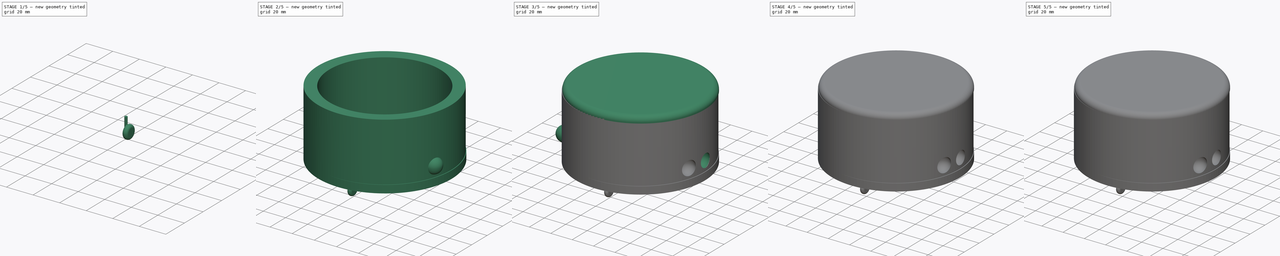
[diagram: build sequence overview — one tinted view per stage of 5, left to right]
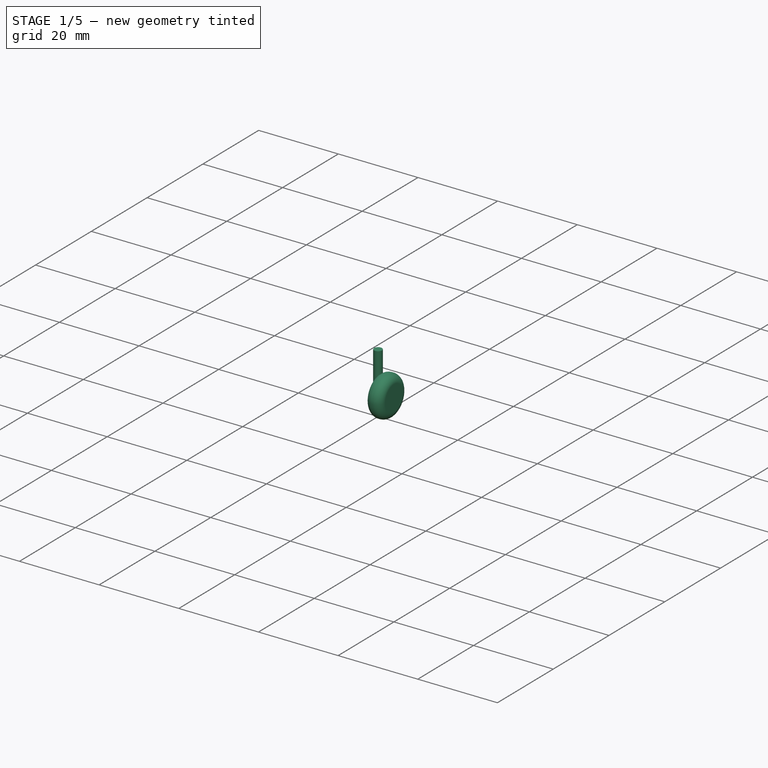
[diagram: stage 1 of 5 — iso view after this stage's code; geometry added in this stage tinted green]
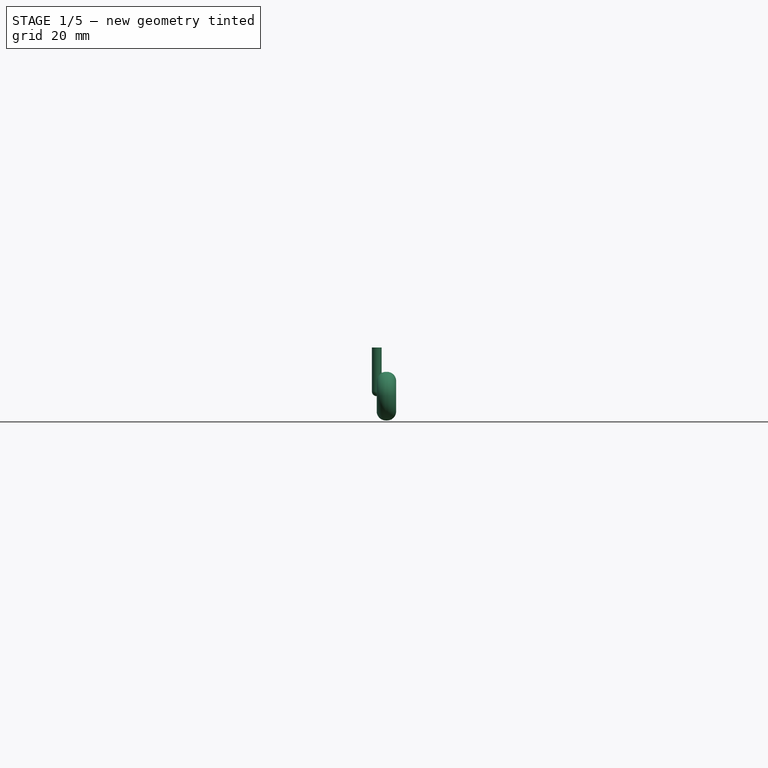
[diagram: stage 1 of 5 — front view after this stage's code; geometry added in this stage tinted green]
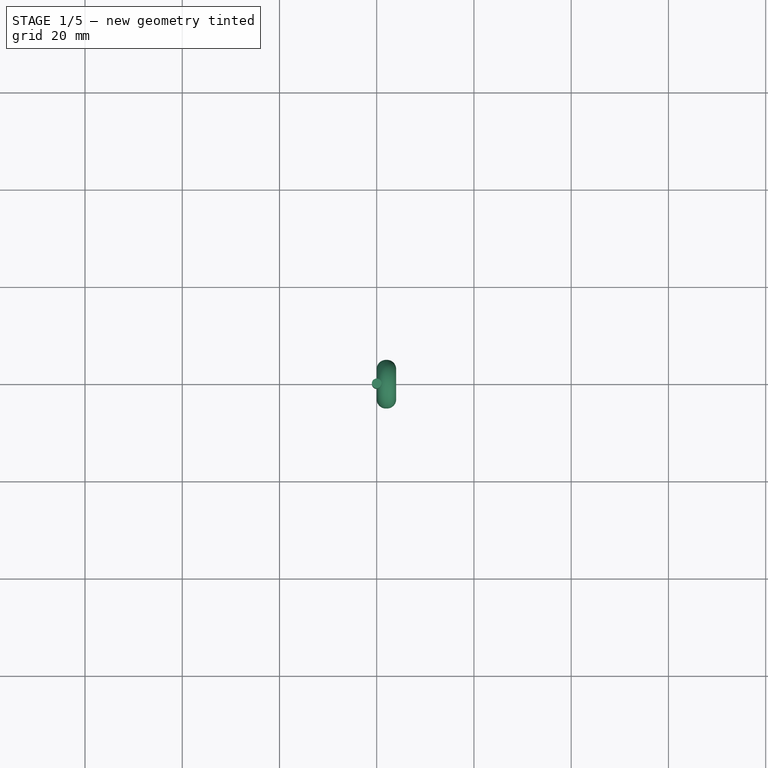
[diagram: stage 1 of 5 — top view after this stage's code; geometry added in this stage tinted green]
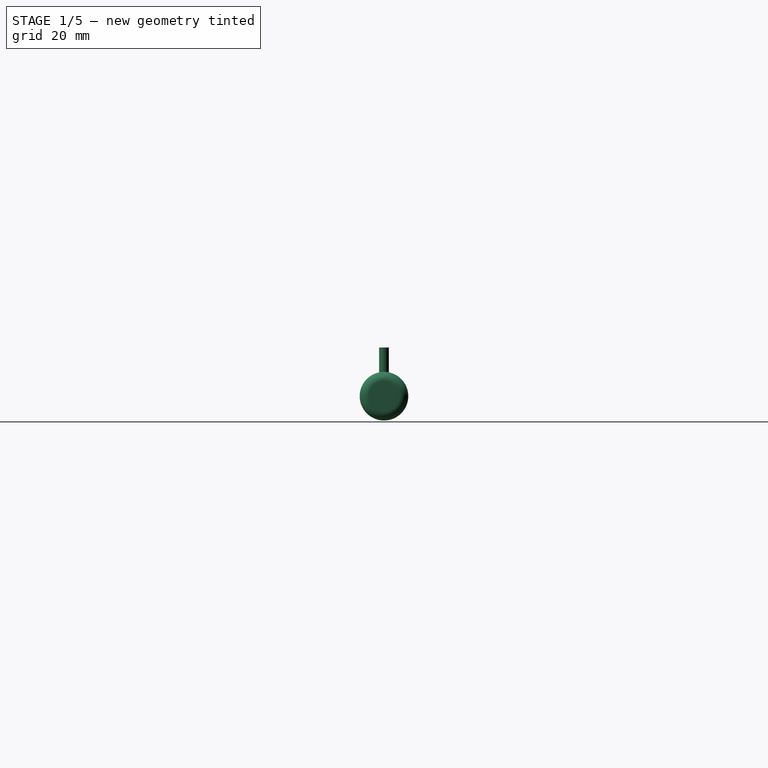
[diagram: stage 1 of 5 — right view after this stage's code; geometry added in this stage tinted green]
FCSTD DOCUMENT  (FreeCAD 0.18R4 (GitTag))
Label: diy lab work_Denny (2)
License: All rights reserved
LicenseURL: http://en.wikipedia.org/wiki/All_rights_reserved
objects: PartDesign::Fillet×12, Sketcher::SketchObject×10, PartDesign::Body×8, PartDesign::Pad×6, Part::Sphere×6, Part::Cut×6, PartDesign::Revolution×3, Part::FeaturePython×2, PartDesign::Pocket×1, Part::Box×1
note: 65 computed .brp shape members not serialized (recipe doc carries the construction recipe); baked Part::Feature solids carry a one-line shape summary decoded from their .brp

FEATURE [Sketcher::SketchObject] Sketch007
  MapMode = 5
  Placement = pos=(0,0,0) rot=(0.57735,0.57735,0.57735;2.0944rad)
  Support = -> [YZ_Plane005]
  sketch-geometry (1):
    g0: Circle CenterX=0 CenterY=0 CenterZ=0 NormalX=0 NormalY=0 NormalZ=1 AngleXU=0 Radius=5
  constraints (2):
    c: Coincident(g0,g-1)
    c: Radius(g0) = 5
FEATURE [PartDesign::Pad] Pad003
  Length = 4
  Length2 = 100
  Placement = pos=(0,0,0) rot=(0.57735,0.57735,0.57735;2.0944rad)
  Profile = -> Sketch007
  Type = 0
FEATURE [PartDesign::Fillet] Fillet007
  Base = -> Pad003 [Edge3]
  BaseFeature = -> Pad003
  Placement = pos=(0,0,0) rot=(0.57735,0.57735,0.57735;2.0944rad)
  Radius = 1.88
FEATURE [PartDesign::Fillet] Fillet009
  Base = -> Fillet007 [Edge3]
  BaseFeature = -> Fillet007
  Placement = pos=(0,0,0) rot=(0.57735,0.57735,0.57735;2.0944rad)
  Radius = 1.88
FEATURE [PartDesign::Body] Body005
  Group = -> [Sketch007,Pad003,Fillet007,Fillet008,Fillet009]
  Origin = -> Origin005
  Placement = pos=(0,-45,-7) rot=(0,0,1;0rad)
  Tip = -> Fillet009
FEATURE [Sketcher::SketchObject] Sketch008
  MapMode = 5
  Support = -> [XY_Plane006]
  sketch-geometry (1):
    g0: Circle CenterX=0 CenterY=0 CenterZ=0 NormalX=0 NormalY=0 NormalZ=1 AngleXU=0 Radius=1
  constraints (2):
    c: Radius(g0) = 1
    c: Coincident(g0,g-1)
FEATURE [PartDesign::Pad] Pad004
  Length = 10
  Length2 = 100
  Profile = -> Sketch008
  Type = 0
FEATURE [PartDesign::Fillet] Fillet010
  Base = -> Pad004 [Edge2]
  BaseFeature = -> Pad004
  Radius = 1
FEATURE [PartDesign::Body] Body006
  Group = -> [Sketch008,Pad004,Fillet010]
  Origin = -> Origin006
  Placement = pos=(0,-45,-7) rot=(0,0,1;0rad)
  Tip = -> Fillet010
FEATURE [Sketcher::SketchObject] Sketch009
  MapMode = 5
  Support = -> [XY_Plane007]
  sketch-geometry (1):
    g0: Circle CenterX=0 CenterY=0 CenterZ=0 NormalX=0 NormalY=0 NormalZ=1 AngleXU=0 Radius=1
  constraints (2):
    c: Radius(g0) = 1
    c: Coincident(g0,g-1)
FEATURE [PartDesign::Pad] Pad005
  Length = 10
  Length2 = 100
  Profile = -> Sketch009
  Type = 0
FEATURE [PartDesign::Fillet] Fillet011
  Base = -> Pad005 [Edge2]
  BaseFeature = -> Pad005
  Radius = 1
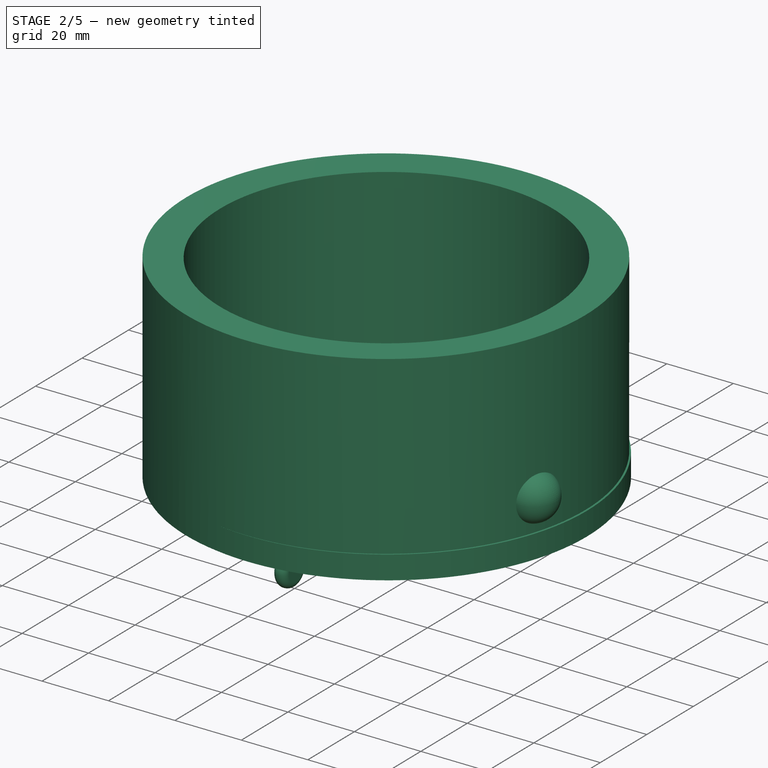
[diagram: stage 2 of 5 — iso view after this stage's code; geometry added in this stage tinted green]
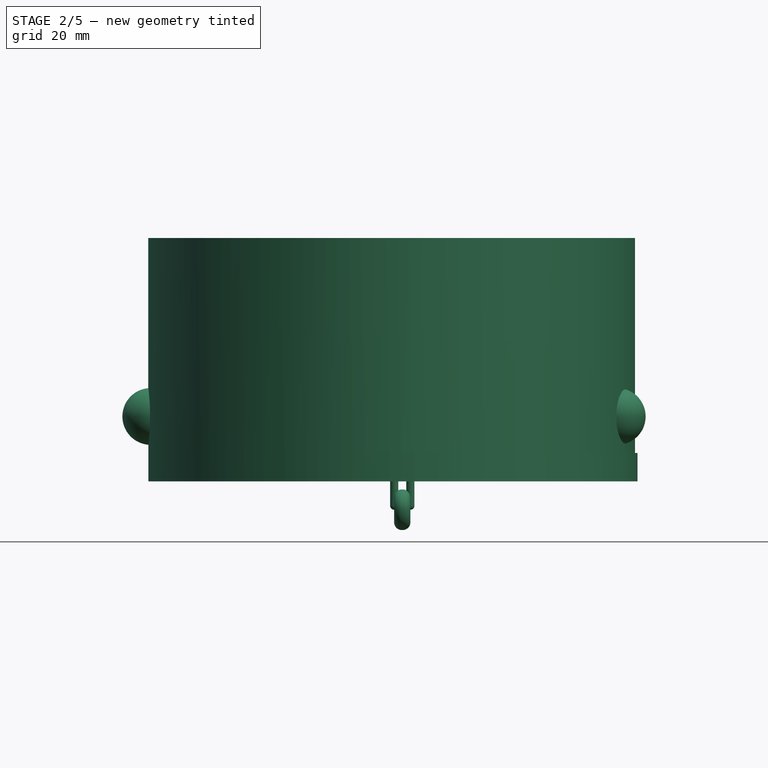
[diagram: stage 2 of 5 — front view after this stage's code; geometry added in this stage tinted green]
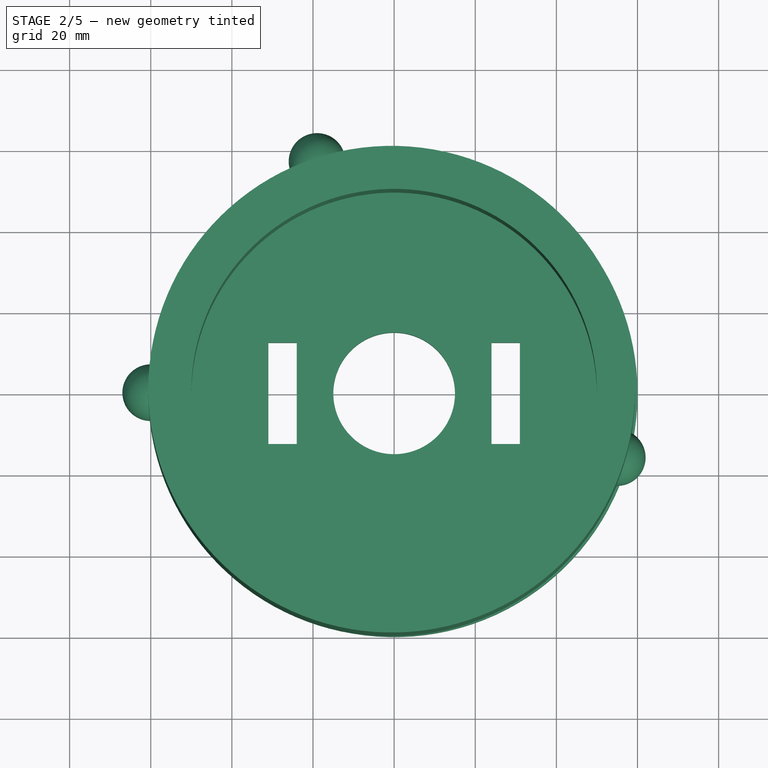
[diagram: stage 2 of 5 — top view after this stage's code; geometry added in this stage tinted green]
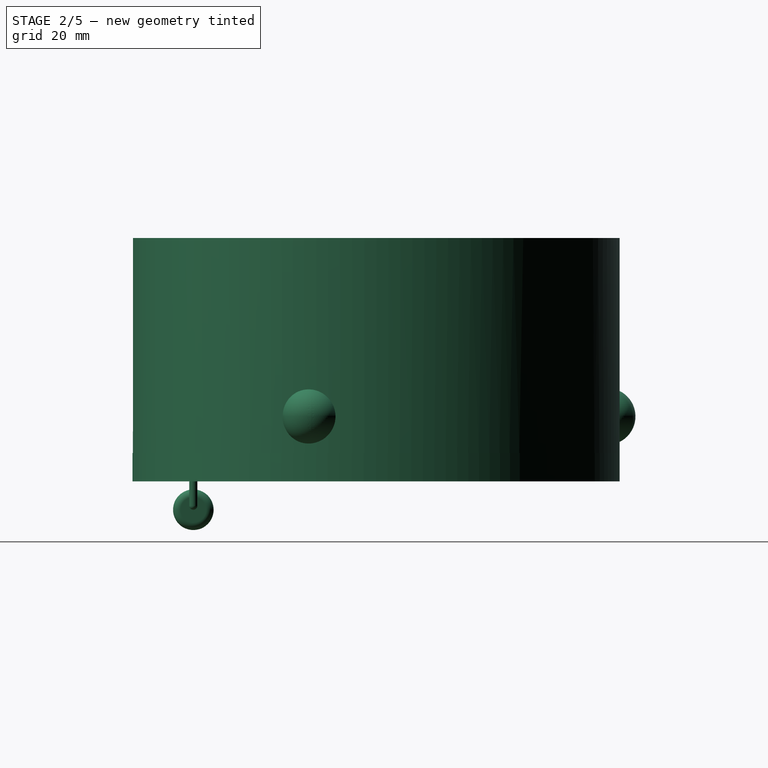
[diagram: stage 2 of 5 — right view after this stage's code; geometry added in this stage tinted green]
FEATURE [Sketcher::SketchObject] Sketch
  MapMode = 5
  Support = -> [XY_Plane]
  sketch-geometry (1):
    g0: Circle CenterX=0 CenterY=0 CenterZ=0 NormalX=0 NormalY=0 NormalZ=1 AngleXU=0 Radius=60
  constraints (1):
    c: Radius(g0) = 60
FEATURE [PartDesign::Pad] Pad
  Length = 7
  Length2 = 100
  Profile = -> Sketch
  Type = 0
FEATURE [Sketcher::SketchObject] Sketch001
  MapMode = 45
  Placement = pos=(25.9253,-0.791921,32.0728) rot=(-0.020041,-0.065853,0.997628;0.837348rad)
  sketch-geometry (2):
    g0: Circle CenterX=-0.611188 CenterY=0.101861 CenterZ=0 NormalX=0 NormalY=0 NormalZ=1 AngleXU=0 Radius=60
    g1: Circle CenterX=0 CenterY=-0.509323 CenterZ=0 NormalX=0 NormalY=0 NormalZ=1 AngleXU=0 Radius=50
  constraints (2):
    c: Radius(g0) = 60
    c: Radius(g1) = 50
FEATURE [PartDesign::Pad] Pad001
  BaseFeature = -> Pad
  Length = 60
  Length2 = 100
  Profile = -> Sketch001
  Type = 0
FEATURE [Sketcher::SketchObject] Sketch002
  MapMode = 5
  Placement = pos=(0,0,0) rot=(1,0,0;3.14159rad)
  Support = -> [Pad001]
  sketch-geometry (9):
    g0: Circle CenterX=0 CenterY=0 CenterZ=0 NormalX=0 NormalY=0 NormalZ=1 AngleXU=0 Radius=15
    g1: LineSegment StartX=-31 StartY=12.5 StartZ=0 EndX=-31 EndY=-12.5 EndZ=0
    g2: LineSegment StartX=-31 StartY=-12.5 StartZ=0 EndX=-24 EndY=-12.5 EndZ=0
    g3: LineSegment StartX=-24 StartY=-12.5 StartZ=0 EndX=-24 EndY=12.5 EndZ=0
    g4: LineSegment StartX=-24 StartY=12.5 StartZ=0 EndX=-31 EndY=12.5 EndZ=0
    g5: LineSegment StartX=24 StartY=12.5 StartZ=0 EndX=24 EndY=-12.5 EndZ=0
    g6: LineSegment StartX=24 StartY=-12.5 StartZ=0 EndX=31 EndY=-12.5 EndZ=0
    g7: LineSegment StartX=31 StartY=-12.5 StartZ=0 EndX=31 EndY=12.5 EndZ=0
    g8: LineSegment StartX=31 StartY=12.5 StartZ=0 EndX=24 EndY=12.5 EndZ=0
  constraints (27):
    c: Radius(g0) = 15
    c: DistanceX(g4,g4) = 7
    c: Coincident(g4,g3)
    c: Coincident(g4,g1)
    c: Equal(g2,g4)
    c: Equal(g8,g6)
    c: Equal(g6,g4)
    c: Coincident(g8,g7)
    c: Coincident(g6,g5)
    c: Coincident(g2,g1)
    c: Coincident(g3,g2)
    c: DistanceY(g3,g3) = 25
    c: DistanceY(g1,g1) = 25
    c: DistanceY(g5,g5) = 25
    c: DistanceY(g7,g7) = 25
    c: Vertical(g1)
    c: Vertical(g5)
    c: Vertical(g7)
    c: Coincident(g8,g5)
    c: Horizontal(g8)
    c: Horizontal(g6)
    c: Horizontal(g2)
    c: DistanceY(g-1,g3) = 12.5
    c: DistanceY(g0,g5) = 12.5
    c: Coincident(g0,g-1)
    c: DistanceX(g2,g0) = 24
    c: DistanceX(g0,g5) = 24
FEATURE [PartDesign::Pocket] Pocket
  BaseFeature = -> Pad001
  Length = 10
  Length2 = 100
  Profile = -> Sketch002
  Type = 0
FEATURE [Part::Sphere] Sphere001
  Angle1 = -90
  Angle2 = 90
  Angle3 = 360
  AttacherType = Attacher::AttachEngine3D
  Placement = pos=(55,-16,16) rot=(0,0,1;0rad)
  Radius = 7
FEATURE [Part::Sphere] Sphere002
  Angle1 = -90
  Angle2 = 90
  Angle3 = 360
  AttacherType = Attacher::AttachEngine3D
  Placement = pos=(-60,0,16) rot=(0,0,1;0rad)
  Radius = 7
FEATURE [Part::Sphere] Sphere005
  Angle1 = -90
  Angle2 = 90
  Angle3 = 360
  AttacherType = Attacher::AttachEngine3D
  Placement = pos=(-19,57,16) rot=(0,0,1;0rad)
  Radius = 7
FEATURE [PartDesign::Fillet] Fillet008
  Base = -> Fillet007 [Edge3]
  BaseFeature = -> Fillet007
  Placement = pos=(0,0,0) rot=(0.57735,0.57735,0.57735;2.0944rad)
  Radius = 2
FEATURE [Part::FeaturePython] Connect001  # WARN: FeaturePython — macro-defined, semantics opaque (R4)
  Objects = -> [Body005,Body007,Body006]
  Tolerance = 0
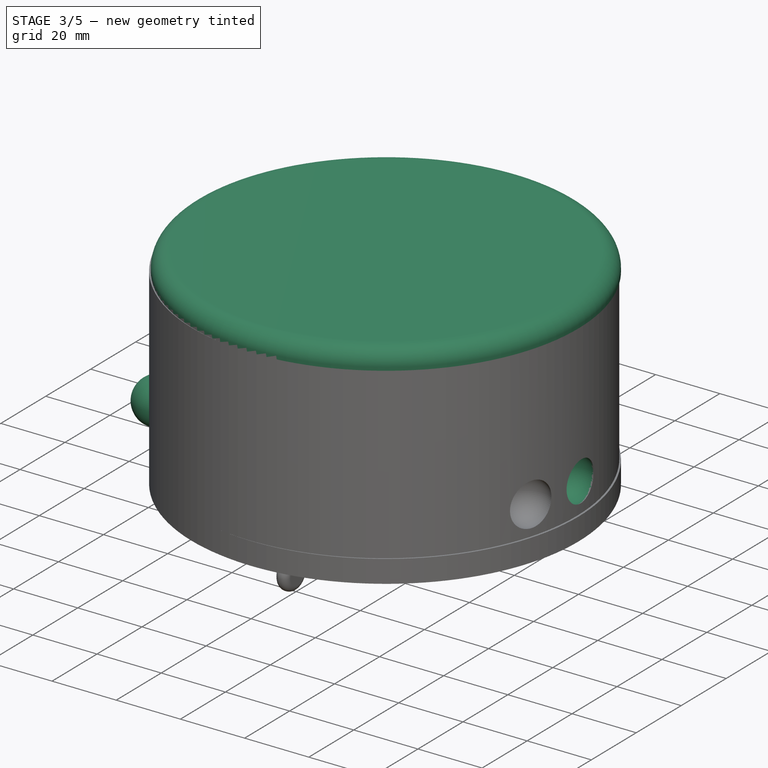
[diagram: stage 3 of 5 — iso view after this stage's code; geometry added in this stage tinted green]
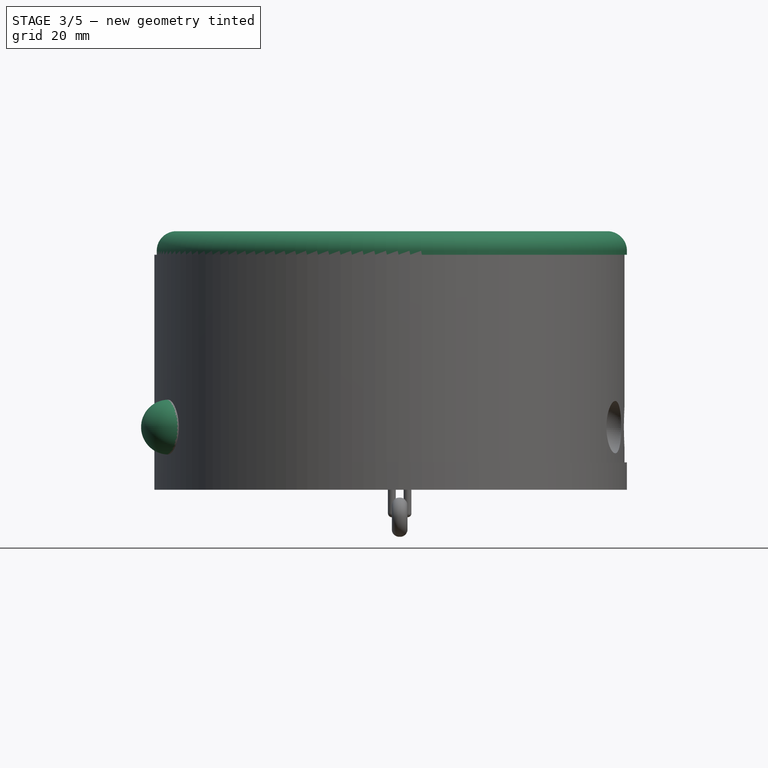
[diagram: stage 3 of 5 — front view after this stage's code; geometry added in this stage tinted green]
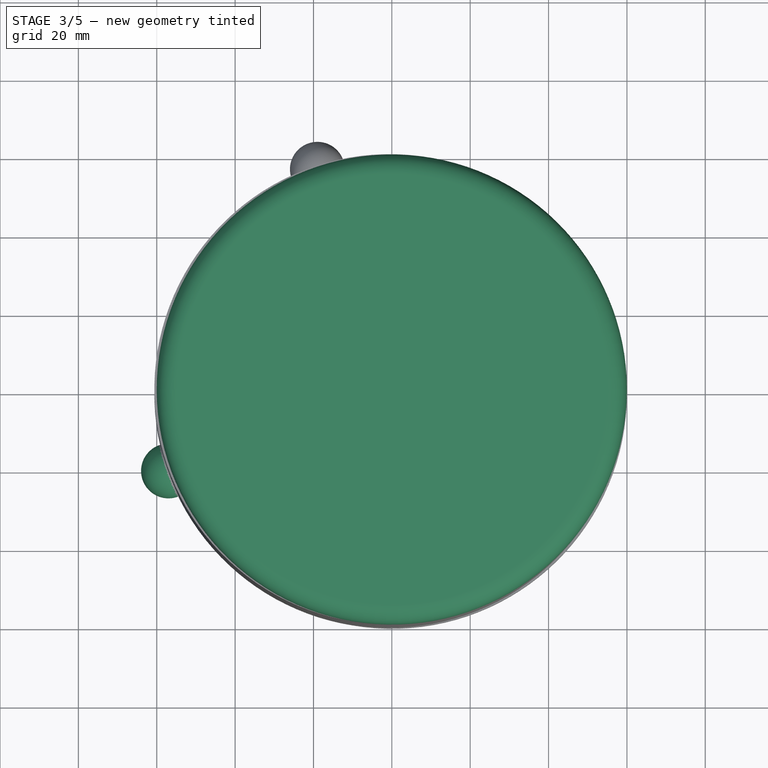
[diagram: stage 3 of 5 — top view after this stage's code; geometry added in this stage tinted green]
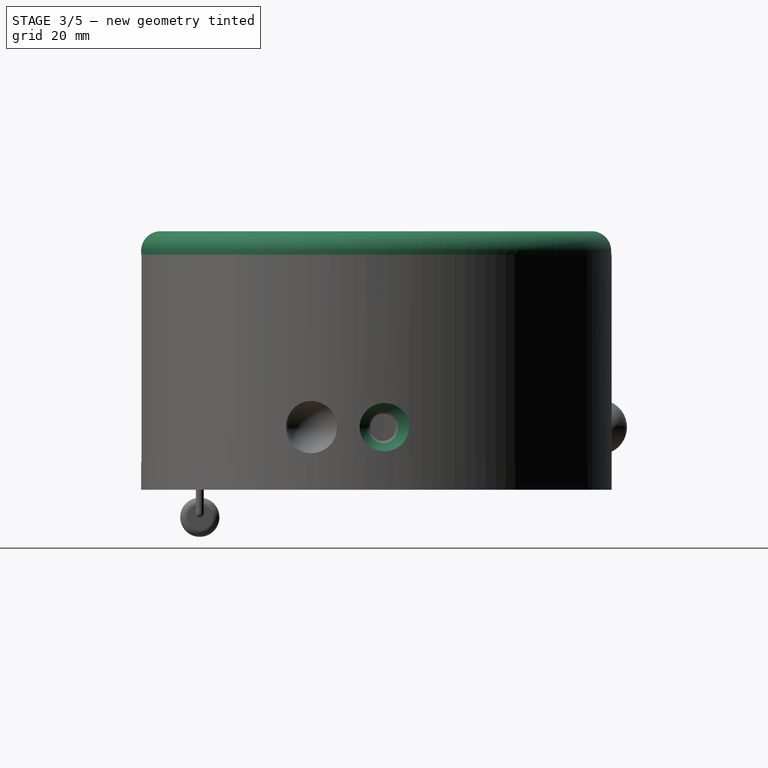
[diagram: stage 3 of 5 — right view after this stage's code; geometry added in this stage tinted green]
FEATURE [Sketcher::SketchObject] Sketch003
  MapMode = 5
  Placement = pos=(0,0,60) rot=(0,0,1;0rad)
  Support = -> [Pocket]
  sketch-geometry (1):
    g0: Circle CenterX=0 CenterY=0 CenterZ=0 NormalX=0 NormalY=0 NormalZ=1 AngleXU=0 Radius=60
  constraints (1):
    c: Radius(g0) = 60
FEATURE [PartDesign::Pad] Pad002
  BaseFeature = -> Pocket
  Length = 6
  Length2 = 100
  Profile = -> Sketch003
  Type = 0
FEATURE [PartDesign::Fillet] Fillet
  Base = -> Pad002 [Face21]
  BaseFeature = -> Pad002
  Radius = 77
FEATURE [PartDesign::Body] Body003
  Group = -> [Sketch006,Revolution002,Fillet005,Fillet006]
  Origin = -> Origin003
  Placement = pos=(20,1,0) rot=(0,0,1;0rad)
  Tip = -> Fillet006
FEATURE [PartDesign::Body] Body004
  Origin = -> Origin004
FEATURE [Part::Sphere] Sphere
  Angle1 = -90
  Angle2 = 90
  Angle3 = 360
  AttacherType = Attacher::AttachEngine3D
  Placement = pos=(56,2,16) rot=(0,0,1;0rad)
  Radius = 7
FEATURE [Part::Cut] Cut
  Base = -> Fillet
  Tool = -> Sphere001
FEATURE [Part::Cut] Cut001
  Base = -> Cut
  Tool = -> Sphere
FEATURE [Part::Sphere] Sphere003
  Angle1 = -90
  Angle2 = 90
  Angle3 = 360
  AttacherType = Attacher::AttachEngine3D
  Placement = pos=(-57,-20,16) rot=(0,0,1;0rad)
  Radius = 7
FEATURE [Part::Cut] Cut002
  Base = -> Cut001
  Tool = -> Sphere002
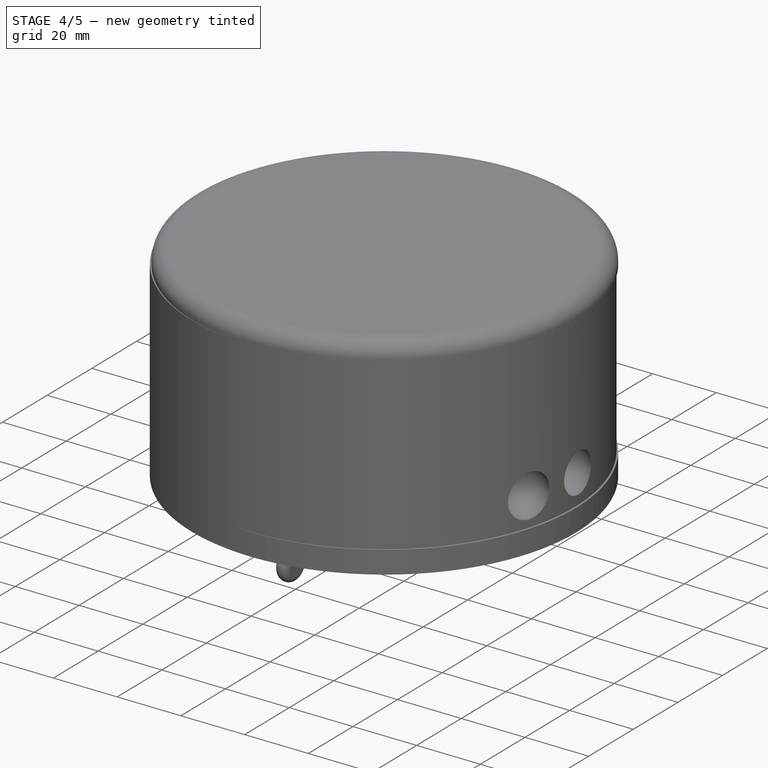
[diagram: stage 4 of 5 — iso view after this stage's code; geometry added in this stage tinted green]
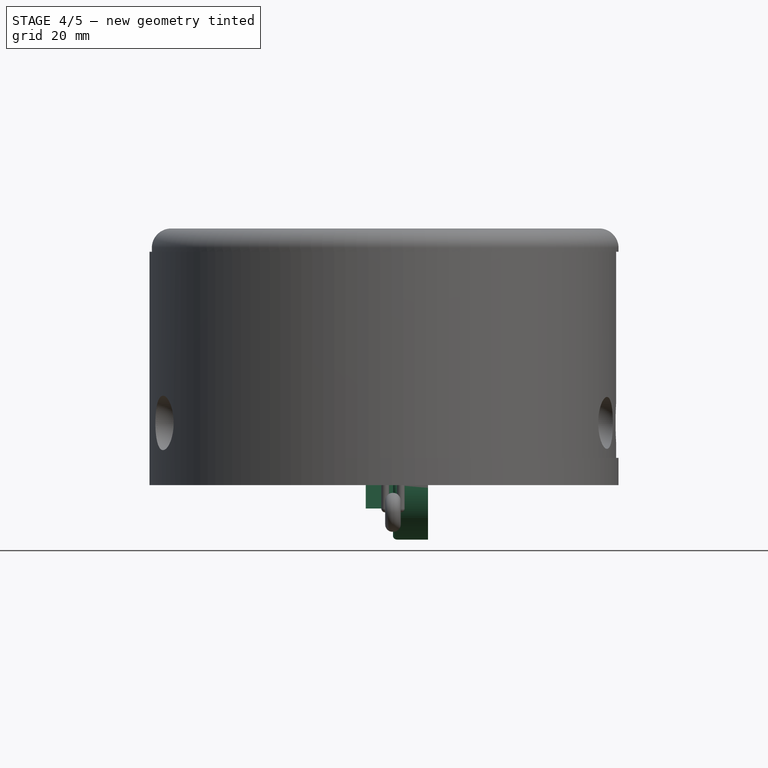
[diagram: stage 4 of 5 — front view after this stage's code; geometry added in this stage tinted green]
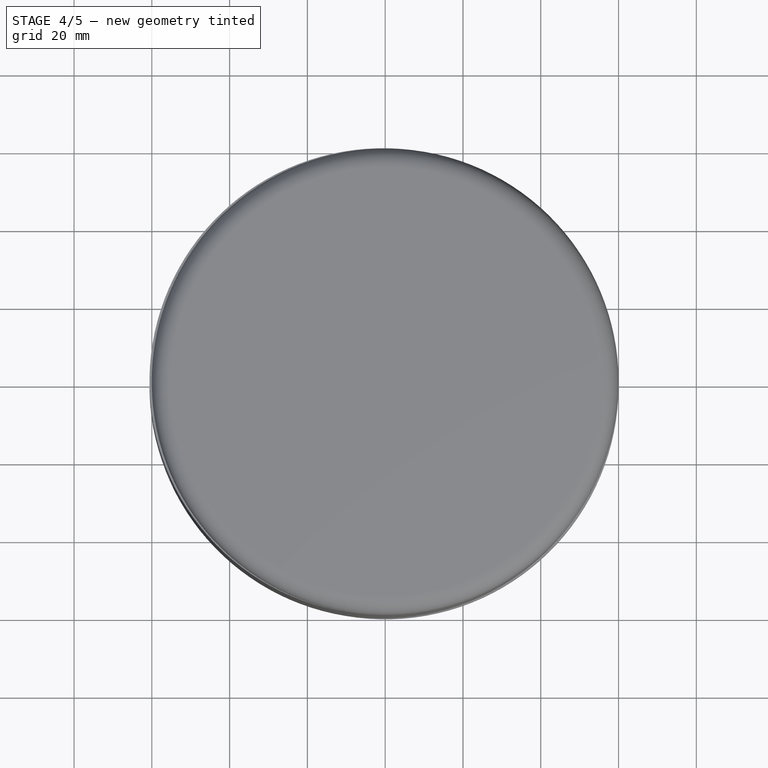
[diagram: stage 4 of 5 — top view after this stage's code; geometry added in this stage tinted green]
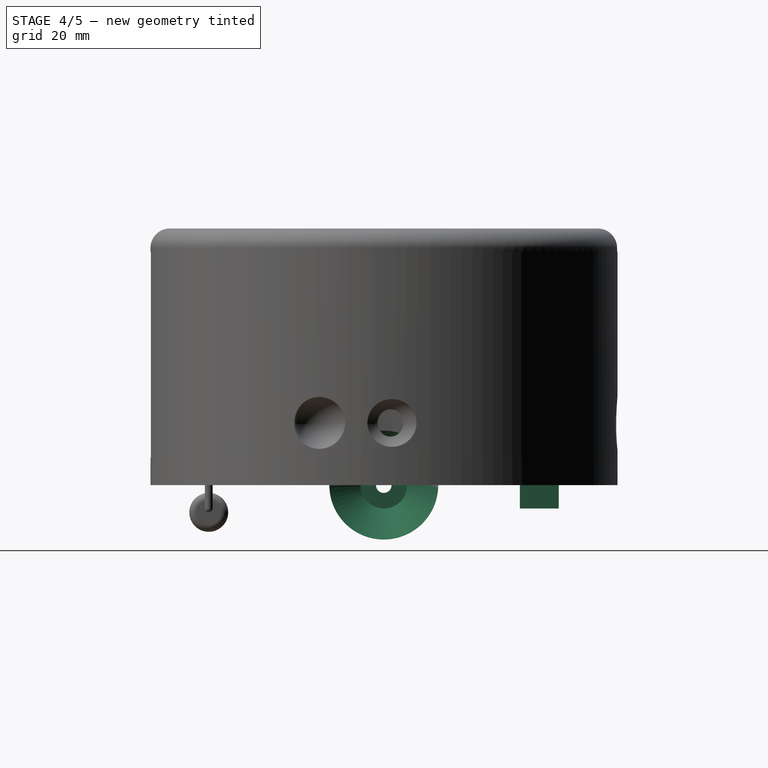
[diagram: stage 4 of 5 — right view after this stage's code; geometry added in this stage tinted green]
FEATURE [PartDesign::Body] Body
  Group = -> [Sketch,Pad,Sketch001,Pad001,Sketch002,Pocket,Sketch003,Pad002,Fillet]
  Origin = -> Origin
  Tip = -> Fillet
FEATURE [Part::Box] Box  label="Cube"
  AttacherType = Attacher::AttachEngine3D
  Height = 10
  Length = 10
  Placement = pos=(-5,35,-6) rot=(0,0,1;0rad)
  Width = 10
FEATURE [PartDesign::Body] Body002
  Group = -> [Sketch005,Revolution001,Fillet003,Fillet004]
  Origin = -> Origin002
  Placement = pos=(-30,0,0) rot=(0,0,1;0rad)
  Tip = -> Fillet004
FEATURE [Sketcher::SketchObject] Sketch006
  MapMode = 5
  Support = -> [XY_Plane003]
  sketch-geometry (5):
    g0: LineSegment StartX=2 StartY=14 StartZ=0 EndX=2 EndY=2 EndZ=0
    g1: LineSegment StartX=2 StartY=14 StartZ=0 EndX=11 EndY=14 EndZ=0
    g2: LineSegment StartX=11 StartY=14 StartZ=0 EndX=6 EndY=6 EndZ=0
    g3: LineSegment StartX=6 StartY=6 StartZ=0 EndX=6 EndY=2 EndZ=0
    g4: LineSegment StartX=2 StartY=2 StartZ=0 EndX=6 EndY=2 EndZ=0
  constraints (15):
    c: Horizontal(g1)
    c: Horizontal(g4)
    c: Vertical(g0)
    c: Vertical(g3)
    c: Coincident(g1,g0)
    c: Coincident(g0,g4)
    c: Coincident(g4,g3)
    c: Coincident(g2,g3)
    c: Coincident(g2,g1)
    c: DistanceY(g0,g0) = 12
    c: DistanceY(g3,g3) = 4
    c: DistanceX(g1,g1) = 9
    c: DistanceX(g4,g4) = 4
    c: DistanceX(g-1,g0) = 2
    c: DistanceY(g-1,g0) = 14
FEATURE [PartDesign::Revolution] Revolution002
  Angle = 360
  Axis = (1,0,0)
  Base = (0,0,0)
  Profile = -> Sketch006
  ReferenceAxis = -> X_Axis003
FEATURE [PartDesign::Fillet] Fillet005
  Base = -> Revolution002 [Edge1]
  BaseFeature = -> Revolution002
  Radius = 1
FEATURE [Part::Cut] Cut003
  Base = -> Cut002
  Tool = -> Sphere003
FEATURE [Part::Sphere] Sphere004
  Angle1 = -90
  Angle2 = 90
  Angle3 = 360
  AttacherType = Attacher::AttachEngine3D
  Placement = pos=(0,60,16) rot=(0,0,1;0rad)
  Radius = 7
FEATURE [Part::Cut] Cut004
  Base = -> Cut003
  Tool = -> Sphere005
FEATURE [Part::Cut] Cut005
  Base = -> Cut004
  Tool = -> Sphere004
FEATURE [PartDesign::Body] Body007
  Group = -> [Sketch009,Pad005,Fillet011]
  Origin = -> Origin007
  Placement = pos=(4,-45,-7) rot=(0,0,1;0rad)
  Tip = -> Fillet011
FEATURE [Part::FeaturePython] Connect  # WARN: FeaturePython — macro-defined, semantics opaque (R4)
  Objects = -> [Cut005,Box]
  Tolerance = 0
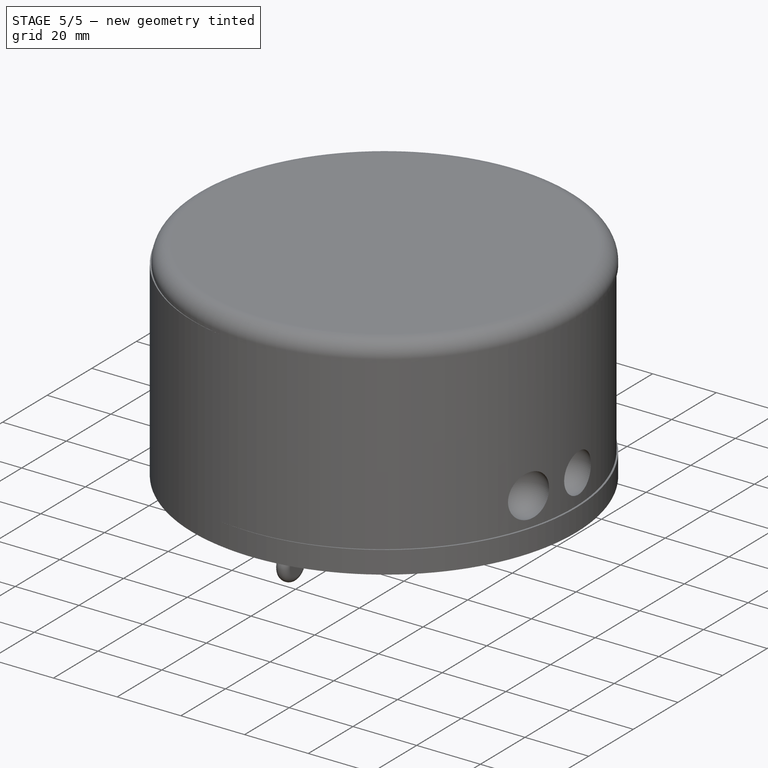
[diagram: stage 5 of 5 — iso view after this stage's code; geometry added in this stage tinted green]
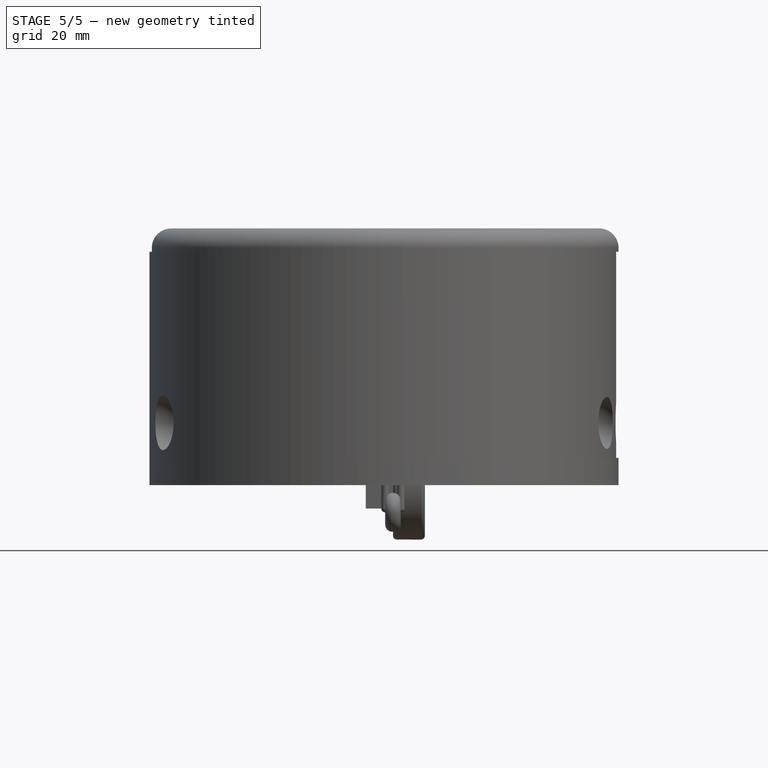
[diagram: stage 5 of 5 — front view after this stage's code; geometry added in this stage tinted green]
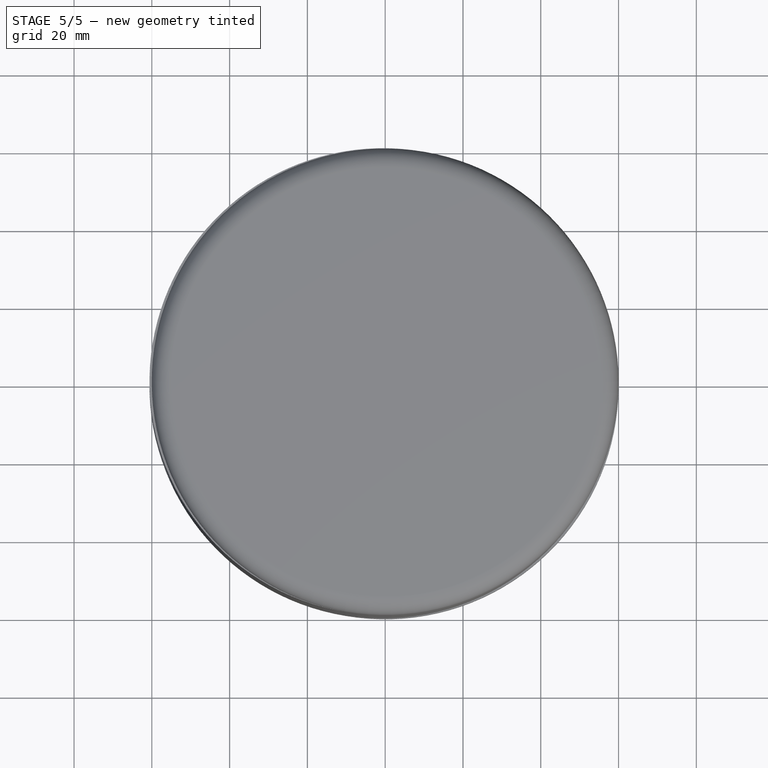
[diagram: stage 5 of 5 — top view after this stage's code; geometry added in this stage tinted green]
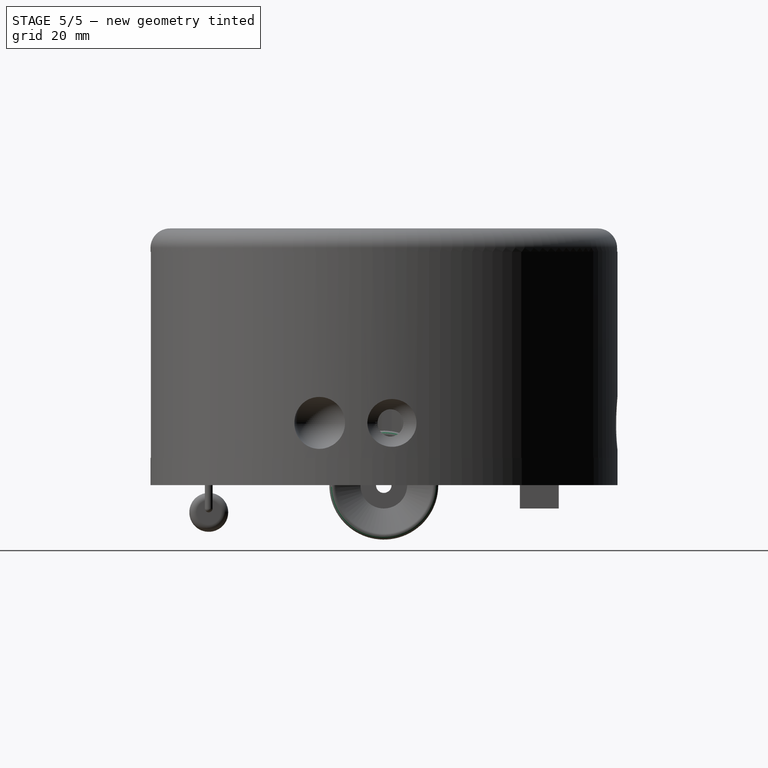
[diagram: stage 5 of 5 — right view after this stage's code; geometry added in this stage tinted green]
FEATURE [Sketcher::SketchObject] Sketch004
  MapMode = 5
  Support = -> [XY_Plane001]
  sketch-geometry (5):
    g0: LineSegment StartX=2 StartY=14 StartZ=0 EndX=2 EndY=2 EndZ=0
    g1: LineSegment StartX=2 StartY=14 StartZ=0 EndX=11 EndY=14 EndZ=0
    g2: LineSegment StartX=11 StartY=14 StartZ=0 EndX=6 EndY=6 EndZ=0
    g3: LineSegment StartX=6 StartY=6 StartZ=0 EndX=6 EndY=2 EndZ=0
    g4: LineSegment StartX=2 StartY=2 StartZ=0 EndX=6 EndY=2 EndZ=0
  constraints (15):
    c: Horizontal(g1)
    c: Horizontal(g4)
    c: Vertical(g0)
    c: Vertical(g3)
    c: Coincident(g1,g0)
    c: Coincident(g0,g4)
    c: Coincident(g4,g3)
    c: Coincident(g2,g3)
    c: Coincident(g2,g1)
    c: DistanceY(g0,g0) = 12
    c: DistanceY(g3,g3) = 4
    c: DistanceX(g1,g1) = 9
    c: DistanceX(g4,g4) = 4
    c: DistanceX(g-1,g0) = 2
    c: DistanceY(g-1,g0) = 14
FEATURE [PartDesign::Revolution] Revolution
  Angle = 360
  Axis = (1,0,0)
  Base = (0,0,0)
  Profile = -> Sketch004
  ReferenceAxis = -> X_Axis001
FEATURE [PartDesign::Fillet] Fillet001
  Base = -> Revolution [Edge1]
  BaseFeature = -> Revolution
  Radius = 1
FEATURE [PartDesign::Fillet] Fillet002
  Base = -> Fillet001 [Edge8]
  BaseFeature = -> Fillet001
  Radius = 1
FEATURE [PartDesign::Body] Body001
  Group = -> [Sketch004,Revolution,Fillet001,Fillet002]
  Origin = -> Origin001
  Placement = pos=(-30,0,0) rot=(0,0,1;0rad)
  Tip = -> Fillet002
FEATURE [Sketcher::SketchObject] Sketch005
  MapMode = 5
  Support = -> [XY_Plane002]
  sketch-geometry (5):
    g0: LineSegment StartX=2 StartY=14 StartZ=0 EndX=2 EndY=2 EndZ=0
    g1: LineSegment StartX=2 StartY=14 StartZ=0 EndX=11 EndY=14 EndZ=0
    g2: LineSegment StartX=11 StartY=14 StartZ=0 EndX=6 EndY=6 EndZ=0
    g3: LineSegment StartX=6 StartY=6 StartZ=0 EndX=6 EndY=2 EndZ=0
    g4: LineSegment StartX=2 StartY=2 StartZ=0 EndX=6 EndY=2 EndZ=0
  constraints (15):
    c: Horizontal(g1)
    c: Horizontal(g4)
    c: Vertical(g0)
    c: Vertical(g3)
    c: Coincident(g1,g0)
    c: Coincident(g0,g4)
    c: Coincident(g4,g3)
    c: Coincident(g2,g3)
    c: Coincident(g2,g1)
    c: DistanceY(g0,g0) = 12
    c: DistanceY(g3,g3) = 4
    c: DistanceX(g1,g1) = 9
    c: DistanceX(g4,g4) = 4
    c: DistanceX(g-1,g0) = 2
    c: DistanceY(g-1,g0) = 14
FEATURE [PartDesign::Revolution] Revolution001
  Angle = 360
  Axis = (1,0,0)
  Base = (0,0,0)
  Profile = -> Sketch005
  ReferenceAxis = -> X_Axis002
FEATURE [PartDesign::Fillet] Fillet003
  Base = -> Revolution001 [Edge1]
  BaseFeature = -> Revolution001
  Radius = 1
FEATURE [PartDesign::Fillet] Fillet004
  Base = -> Fillet003 [Edge8]
  BaseFeature = -> Fillet003
  Radius = 1
FEATURE [PartDesign::Fillet] Fillet006
  Base = -> Fillet005 [Edge8]
  BaseFeature = -> Fillet005
  Radius = 1
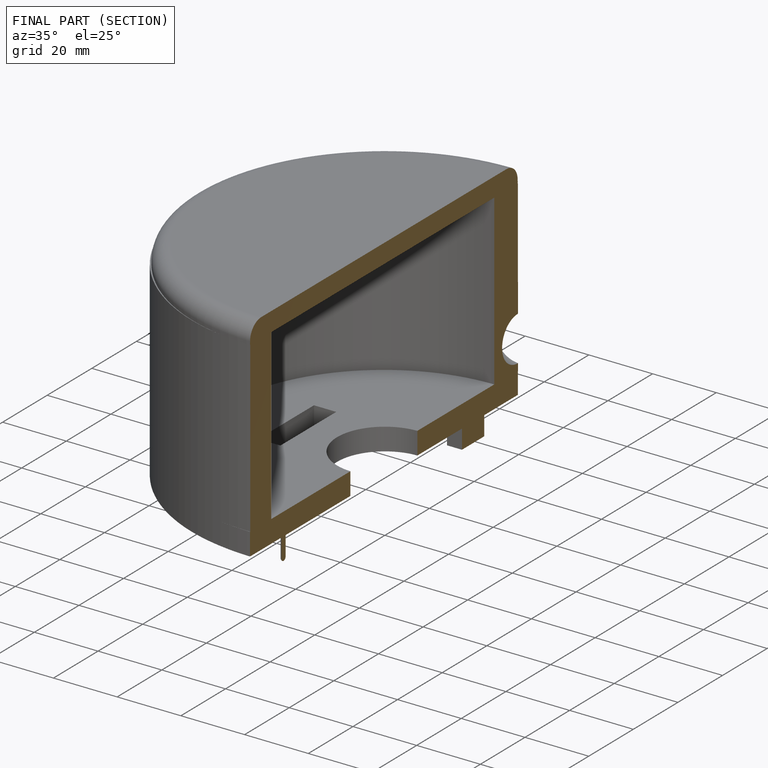
[diagram: finished part — half-section view (interior)]
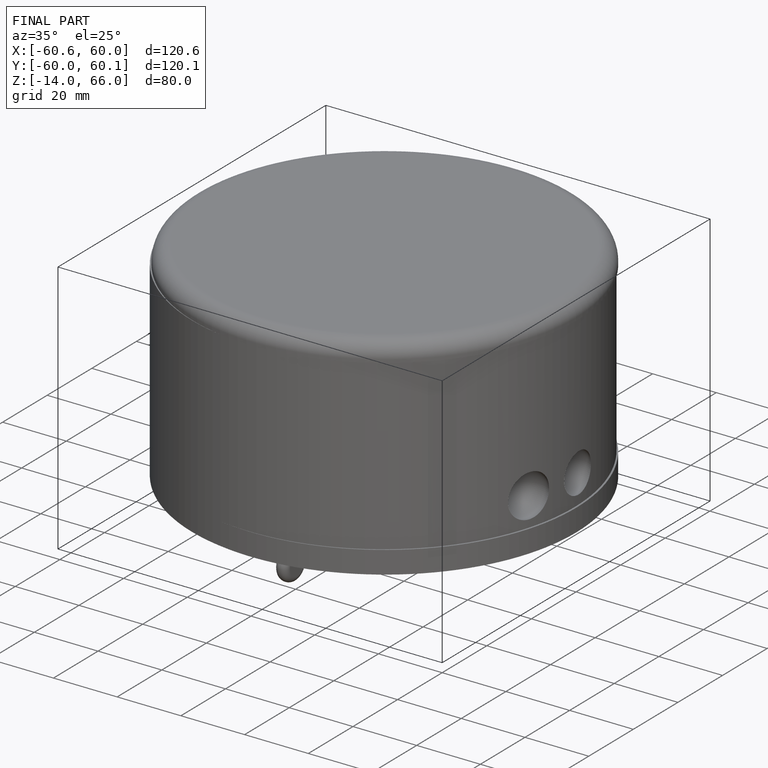
[diagram: finished part — iso view with bounding-box wireframe]
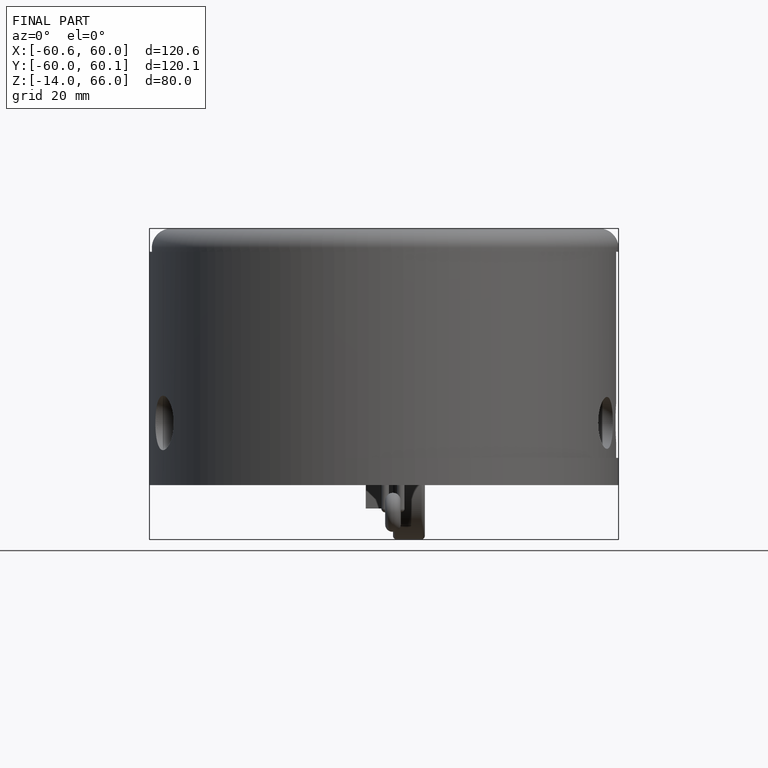
[diagram: finished part — front view with bounding-box wireframe]
